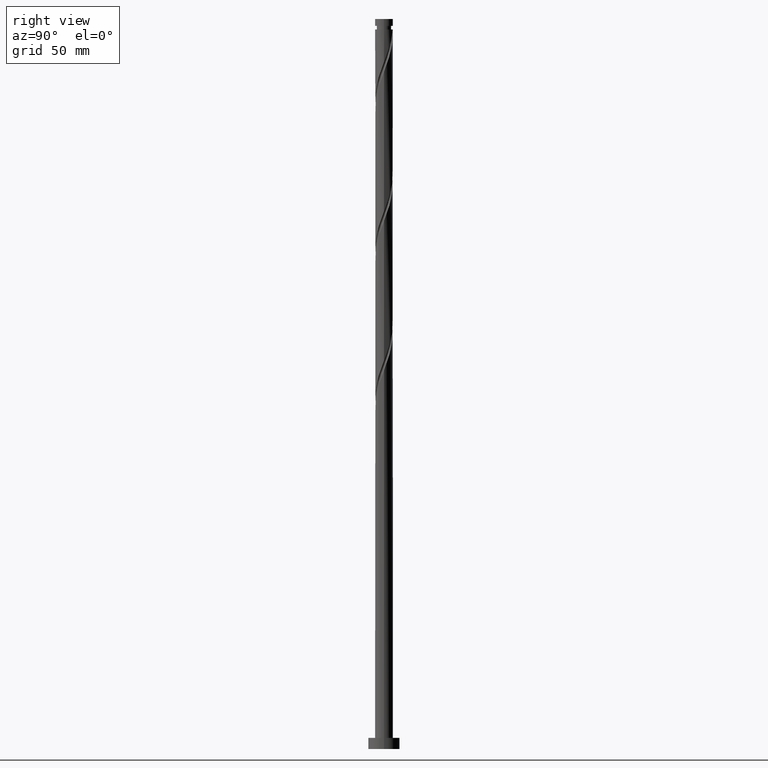
[diagram: clean part render]
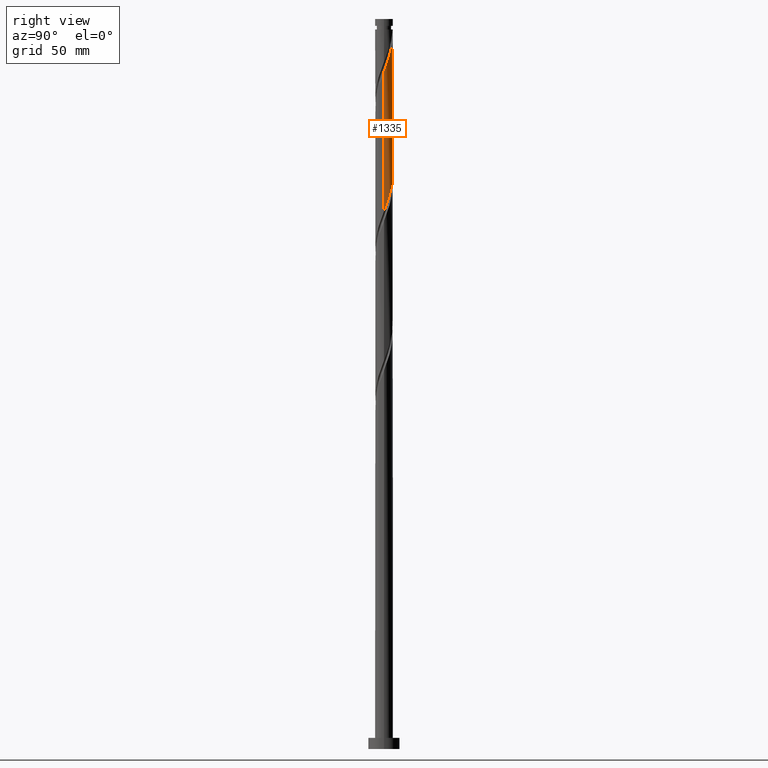
[diagram: same view with one face highlighted and labeled with its STEP entity id]
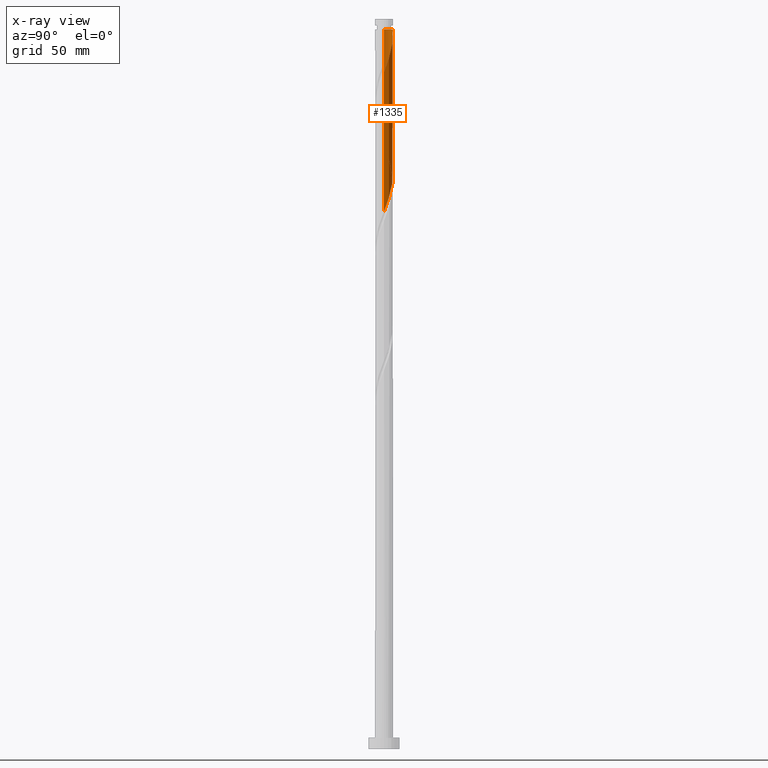
[diagram: x-ray of the same camera — body ghosted, the highlighted face saturated]
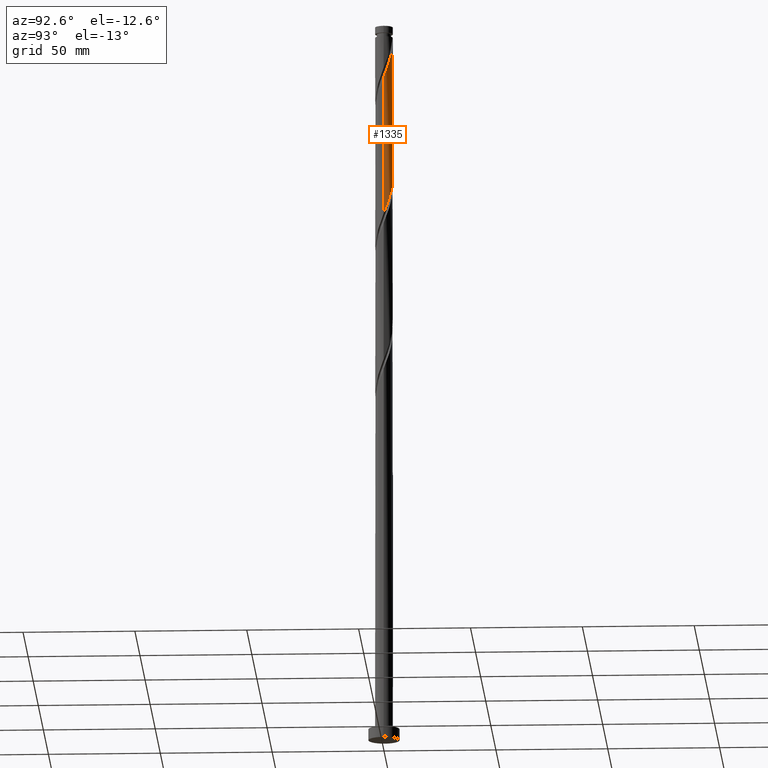
[diagram: same view with one face highlighted and labeled with its STEP entity id]
A machine part, right view. The second image highlights one B-rep face of the part: STEP entity #1335.
The next image is the same camera in x-ray: the body ghosted, the highlighted face saturated — about 0% of this face is hidden behind the body in this view.
A second angle (auxiliary view) of the same face is appended — the face is thin or edge-on in the first view.
In plain terms, the highlighted cylindrical surface (edge-blend (fillet) strip) has radius 4 mm, axis along (-0, -0, -1).
Its self-contained STEP definition (entity closure, byte-faithful):
#19 = CARTESIAN_POINT ( 'NONE',  ( 2.948087585633560437, 2.703475464551747365, 247.9750467429132641 ) ) ;
#31 = EDGE_LOOP ( 'NONE', ( #995, #1284, #901, #1844, #184 ) ) ;
#36 = CARTESIAN_POINT ( 'NONE',  ( -3.941592455888983437, 0.8003744848579138482, 271.3083800762465216 ) ) ;
#44 =( BOUNDED_CURVE ( )  B_SPLINE_CURVE ( 2, ( #965, #524, #1115, #36, #1149, #485, #991, #1466, #1138, #325, #191, #1748, #1867, #837, #58, #1737, #1107, #973, #344, #692, #1567, #168, #1578, #806, #19, #234, #1013, #1003, #1626, #859, #723, #1321, #870 ),
 .UNSPECIFIED., .F., .T. ) 
 B_SPLINE_CURVE_WITH_KNOTS ( ( 3, 2, 2, 2, 2, 2, 2, 2, 2, 2, 2, 2, 2, 2, 2, 2, 3 ),
 ( 0.4295286012773115725, 0.4333333333333333481, 0.4416666666666666519, 0.4500000000000000111, 0.4583333333333333148, 0.4666666666666666741, 0.4749999999999999778, 0.4833333333333333370, 0.4916666666666666408, 0.5000000000000000000, 0.5083333333333333037, 0.5166666666666667185, 0.5250000000000000222, 0.5333333333333333259, 0.5416666666666666297, 0.5500000000000000444, 0.5545286012773114059 ),
 .UNSPECIFIED. ) 
 CURVE ( )  GEOMETRIC_REPRESENTATION_ITEM ( )  RATIONAL_B_SPLINE_CURVE ( ( 0.9066196499552254817, 0.9068171577856383170, 0.9090909090909370383, 0.9041108139711855340, 0.9090909090909370383, 0.9041108139711855340, 0.9090909090909370383, 0.9041108139711855340, 0.9090909090909370383, 0.9041108139711855340, 0.9090909090909370383, 0.9041108139711855340, 0.9090909090909370383, 0.9041108139711855340, 0.9090909090909370383, 0.9041108139711855340, 0.9090909090909370383, 0.9041108139711855340, 0.9090909090909370383, 0.9041108139711855340, 0.9090909090909370383, 0.9041108139711855340, 0.9090909090909370383, 0.9041108139711855340, 0.9090909090909370383, 0.9041108139711855340, 0.9090909090909370383, 0.9041108139711855340, 0.9090909090909370383, 0.9041108139711855340, 0.9090909090909370383, 0.9063845652764843663, 0.9066196499552254817 ) ) 
 REPRESENTATION_ITEM ( '' )  );
#47 = FACE_OUTER_BOUND ( 'NONE', #31, .T. ) ;
#54 = EDGE_CURVE ( 'NONE', #97, #338, #44, .T. ) ;
#58 = CARTESIAN_POINT ( 'NONE',  ( -0.8672346379929704030, 3.904856474016069612, 259.0861578540243499 ) ) ;
#70 = VERTEX_POINT ( 'NONE', #1024 ) ;
#80 = CARTESIAN_POINT ( 'NONE',  ( 3.981729436060737815, 0.3818778574459142927, 303.5306022984688070 ) ) ;
#96 = CARTESIAN_POINT ( 'NONE',  ( 1.277651591516659080, 3.813706440593914948, 315.7528245206910356 ) ) ;
#97 = VERTEX_POINT ( 'NONE', #1484 ) ;
#130 = CARTESIAN_POINT ( 'NONE',  ( 3.999999999999999112, 4.858235011716200766E-15, 240.1004899864347806 ) ) ;
#168 = CARTESIAN_POINT ( 'NONE',  ( 1.979220423070277901, 3.501347872067845479, 251.3083800762464932 ) ) ;
#184 = ORIENTED_EDGE ( 'NONE', *, *, #1483, .T. ) ;
#191 = CARTESIAN_POINT ( 'NONE',  ( -2.380506478182903951, 3.214527789167364258, 263.5306022984688070 ) ) ;
#234 = CARTESIAN_POINT ( 'NONE',  ( 3.232234306894791853, 2.393618973367495073, 246.8639356318021214 ) ) ;
#241 = DIRECTION ( 'NONE',  ( -0.000000000000000000, -0.000000000000000000, -1.000000000000000000 ) ) ;
#256 = CARTESIAN_POINT ( 'NONE',  ( 2.042645993162208740, 3.464729102101769875, 313.5306022984686933 ) ) ;
#295 = CARTESIAN_POINT ( 'NONE',  ( 0.8672346379929752880, 3.904856474016071832, 316.8639356318022351 ) ) ;
#313 = CARTESIAN_POINT ( 'NONE',  ( 4.000000000000000000, 4.898587196589412829E-16, 326.0000000000000000 ) ) ;
#325 = CARTESIAN_POINT ( 'NONE',  ( -2.718366963203606268, 2.964326476232961305, 264.6417134095798929 ) ) ;
#338 = VERTEX_POINT ( 'NONE', #130 ) ;
#344 = CARTESIAN_POINT ( 'NONE',  ( 0.7959899496852986811, 3.919999999999999929, 254.6417134095799213 ) ) ;
#396 = CARTESIAN_POINT ( 'NONE',  ( 2.718366963203611153, 2.964326476232963969, 311.3083800762465216 ) ) ;
#472 = DIRECTION ( 'NONE',  ( -1.000000000000000000, 0.000000000000000000, 0.000000000000000000 ) ) ;
#482 = CARTESIAN_POINT ( 'NONE',  ( 0.000000000000000000, 0.000000000000000000, 321.3083800762465785 ) ) ;
#485 = CARTESIAN_POINT ( 'NONE',  ( -3.689051991364075356, 1.602387534070727426, 269.0861578540242931 ) ) ;
#520 = CARTESIAN_POINT ( 'NONE',  ( -4.000000000000000000, 0.000000000000000000, 326.0000000000000000 ) ) ;
#524 = CARTESIAN_POINT ( 'NONE',  ( -3.999999999999999112, 0.1913759971470049837, 272.9252747942040287 ) ) ;
#542 = CARTESIAN_POINT ( 'NONE',  ( -3.999999999999972466, 0.000000000000000000, 321.3083800762465785 ) ) ;
#560 = CARTESIAN_POINT ( 'NONE',  ( 2.996824607992357947, 2.649347517584565548, 310.1972689651353789 ) ) ;
#623 = CARTESIAN_POINT ( 'NONE',  ( -0.7959899496853222178, 3.920000000000003482, 321.3083800762466353 ) ) ;
#651 = DIRECTION ( 'NONE',  ( -0.000000000000000000, -0.000000000000000000, -1.000000000000000000 ) ) ;
#674 = VERTEX_POINT ( 'NONE', #960 ) ;
#692 = CARTESIAN_POINT ( 'NONE',  ( 1.207998551926752429, 3.836338085059161518, 253.5306022984688070 ) ) ;
#723 = CARTESIAN_POINT ( 'NONE',  ( 3.974115965681417784, 0.4543151893961389631, 241.3083800762465501 ) ) ;
#727 = CARTESIAN_POINT ( 'NONE',  ( 3.689051991364082905, 1.602387534070725872, 306.8639356318020646 ) ) ;
#739 = VECTOR ( 'NONE', #241, 1000.000000000000000 ) ;
#806 = CARTESIAN_POINT ( 'NONE',  ( 2.663940864372329909, 3.013331955735995660, 249.0861578540243215 ) ) ;
#837 = CARTESIAN_POINT ( 'NONE',  ( -1.277651591516654639, 3.813706440593910951, 260.1972689651353789 ) ) ;
#859 = CARTESIAN_POINT ( 'NONE',  ( 3.926365515130356698, 0.8720116088261987697, 242.4194911873576643 ) ) ;
#870 = CARTESIAN_POINT ( 'NONE',  ( 3.999999999999999112, 4.858235011716200766E-15, 240.1004899864347806 ) ) ;
#884 = CARTESIAN_POINT ( 'NONE',  ( 4.000000000000007105, 0.1913759971469860821, 303.0248186916224427 ) ) ;
#901 = ORIENTED_EDGE ( 'NONE', *, *, #54, .F. ) ;
#903 = CIRCLE ( 'NONE', #1028, 3.999999999999972466 ) ;
#932 = AXIS2_PLACEMENT_3D ( 'NONE', #1855, #1437, #472 ) ;
#960 = CARTESIAN_POINT ( 'NONE',  ( 4.000000000000007105, -1.524738372907843749E-15, 302.5162701660584048 ) ) ;
#965 = CARTESIAN_POINT ( 'NONE',  ( -3.999999999999999112, 7.294826725284631319E-15, 273.4338233197680665 ) ) ;
#973 = CARTESIAN_POINT ( 'NONE',  ( 0.3839813474438459329, 4.003661914940836120, 255.7528245206909219 ) ) ;
#991 = CARTESIAN_POINT ( 'NONE',  ( -3.482167122072584942, 1.968378046503447942, 267.9750467429132073 ) ) ;
#995 = ORIENTED_EDGE ( 'NONE', *, *, #996, .F. ) ;
#996 = EDGE_CURVE ( 'NONE', #674, #70, #1778, .T. ) ;
#1003 = CARTESIAN_POINT ( 'NONE',  ( 3.659263600224941015, 1.669293356004667883, 244.6417134095798644 ) ) ;
#1013 = CARTESIAN_POINT ( 'NONE',  ( 3.445748953559866212, 2.031456164686082033, 245.7528245206910640 ) ) ;
#1024 = CARTESIAN_POINT ( 'NONE',  ( -0.7959899496853223289, 3.920000000000003482, 321.3083800762465785 ) ) ;
#1028 = AXIS2_PLACEMENT_3D ( 'NONE', #482, #1405, #1881 ) ;
#1037 = CARTESIAN_POINT ( 'NONE',  ( 3.482167122072591159, 1.968378046503449275, 307.9750467429132073 ) ) ;
#1077 = CARTESIAN_POINT ( 'NONE',  ( 0.4568176844692878880, 3.996006507438230049, 317.9750467429130936 ) ) ;
#1107 = CARTESIAN_POINT ( 'NONE',  ( -0.03641816851271968691, 3.999834211189531086, 256.8639356318021214 ) ) ;
#1115 = CARTESIAN_POINT ( 'NONE',  ( -3.981729436060731153, 0.3818778574459180675, 272.4194911873577212 ) ) ;
#1138 = CARTESIAN_POINT ( 'NONE',  ( -2.996824607992349510, 2.649347517584564660, 265.7528245206910924 ) ) ;
#1149 = CARTESIAN_POINT ( 'NONE',  ( -3.815322223626530285, 1.201381009464321137, 270.1972689651354358 ) ) ;
#1181 = CARTESIAN_POINT ( 'NONE',  ( 3.941592455888989655, 0.8003744848579132931, 304.6417134095798360 ) ) ;
#1284 = ORIENTED_EDGE ( 'NONE', *, *, #1562, .T. ) ;
#1321 = CARTESIAN_POINT ( 'NONE',  ( 3.999999999999999112, 0.2278949497857320761, 240.7060812958193310 ) ) ;
#1335 = ADVANCED_FACE ( 'NONE', ( #47 ), #1723, .T. ) ;
#1343 = CARTESIAN_POINT ( 'NONE',  ( 3.275282252781099412, 2.334368558936169791, 309.0861578540243499 ) ) ;
#1405 = DIRECTION ( 'NONE',  ( -0.000000000000000000, -0.000000000000000000, -1.000000000000000000 ) ) ;
#1437 = DIRECTION ( 'NONE',  ( -0.000000000000000000, -0.000000000000000000, -1.000000000000000000 ) ) ;
#1466 = CARTESIAN_POINT ( 'NONE',  ( -3.275282252781093639, 2.334368558936168903, 266.8639356318021214 ) ) ;
#1468 = CARTESIAN_POINT ( 'NONE',  ( 4.000000000000007105, -1.524738372907843749E-15, 302.5162701660584048 ) ) ;
#1483 = EDGE_CURVE ( 'NONE', #1662, #70, #903, .T. ) ;
#1484 = CARTESIAN_POINT ( 'NONE',  ( -3.999999999999999112, 7.294826725284631319E-15, 273.4338233197680665 ) ) ;
#1502 = CARTESIAN_POINT ( 'NONE',  ( 1.660148792339432688, 3.639217771347842856, 314.6417134095798929 ) ) ;
#1562 = EDGE_CURVE ( 'NONE', #674, #338, #2011, .T. ) ;
#1567 = CARTESIAN_POINT ( 'NONE',  ( 1.593609487498514943, 3.668842978563503721, 252.4194911873576928 ) ) ;
#1572 = VECTOR ( 'NONE', #651, 1000.000000000000000 ) ;
#1578 = CARTESIAN_POINT ( 'NONE',  ( 2.321580643721306014, 3.257339913901919903, 250.1972689651354926 ) ) ;
#1626 = CARTESIAN_POINT ( 'NONE',  ( 3.792814557677649301, 1.270652482415431939, 243.5306022984687786 ) ) ;
#1634 = LINE ( 'NONE', #520, #739 ) ;
#1649 = EDGE_CURVE ( 'NONE', #1662, #97, #1634, .T. ) ;
#1651 = CARTESIAN_POINT ( 'NONE',  ( 2.380506478182909724, 3.214527789167367366, 312.4194911873576643 ) ) ;
#1662 = VERTEX_POINT ( 'NONE', #542 ) ;
#1698 = CARTESIAN_POINT ( 'NONE',  ( 0.03641816851272264288, 3.999834211189538191, 319.0861578540243499 ) ) ;
#1723 = CYLINDRICAL_SURFACE ( 'NONE', #932, 4.000000000000000000 ) ;
#1737 = CARTESIAN_POINT ( 'NONE',  ( -0.4568176844692857230, 3.996006507438224276, 257.9750467429131504 ) ) ;
#1748 = CARTESIAN_POINT ( 'NONE',  ( -2.042645993162202522, 3.464729102101767211, 262.4194911873576643 ) ) ;
#1778 =( BOUNDED_CURVE ( )  B_SPLINE_CURVE ( 2, ( #1468, #884, #80, #1181, #1941, #727, #1037, #1343, #560, #396, #1651, #256, #1502, #96, #295, #1077, #1698, #1823, #623 ),
 .UNSPECIFIED., .F., .T. ) 
 B_SPLINE_CURVE_WITH_KNOTS ( ( 3, 2, 2, 2, 2, 2, 2, 2, 2, 3 ),
 ( 0.6795286012773112949, 0.6833333333333333481, 0.6916666666666665408, 0.6999999999999998446, 0.7083333333333330373, 0.7166666666666663410, 0.7249999999999996447, 0.7333333333333329485, 0.7416666666666662522, 0.7499999999999994449 ),
 .UNSPECIFIED. ) 
 CURVE ( )  GEOMETRIC_REPRESENTATION_ITEM ( )  RATIONAL_B_SPLINE_CURVE ( ( 0.9066196499552313659, 0.9068171577856439791, 0.9090909090909430335, 0.9041108139711913072, 0.9090909090909430335, 0.9041108139711913072, 0.9090909090909430335, 0.9041108139711913072, 0.9090909090909430335, 0.9041108139711913072, 0.9090909090909430335, 0.9041108139711913072, 0.9090909090909430335, 0.9041108139711913072, 0.9090909090909430335, 0.9041108139711913072, 0.9090909090909430335, 0.9041108139711916403, 0.9090909090909427004 ) ) 
 REPRESENTATION_ITEM ( '' )  );
#1823 = CARTESIAN_POINT ( 'NONE',  ( -0.3839813474438144580, 4.003661914940842337, 320.1972689651353221 ) ) ;
#1844 = ORIENTED_EDGE ( 'NONE', *, *, #1649, .F. ) ;
#1855 = CARTESIAN_POINT ( 'NONE',  ( 0.000000000000000000, 0.000000000000000000, 326.0000000000000000 ) ) ;
#1867 = CARTESIAN_POINT ( 'NONE',  ( -1.660148792339429136, 3.639217771347840191, 261.3083800762465785 ) ) ;
#1881 = DIRECTION ( 'NONE',  ( -1.000000000000000000, 0.000000000000000000, 0.000000000000000000 ) ) ;
#1941 = CARTESIAN_POINT ( 'NONE',  ( 3.815322223626536502, 1.201381009464319582, 305.7528245206910356 ) ) ;
#2011 = LINE ( 'NONE', #313, #1572 ) ;